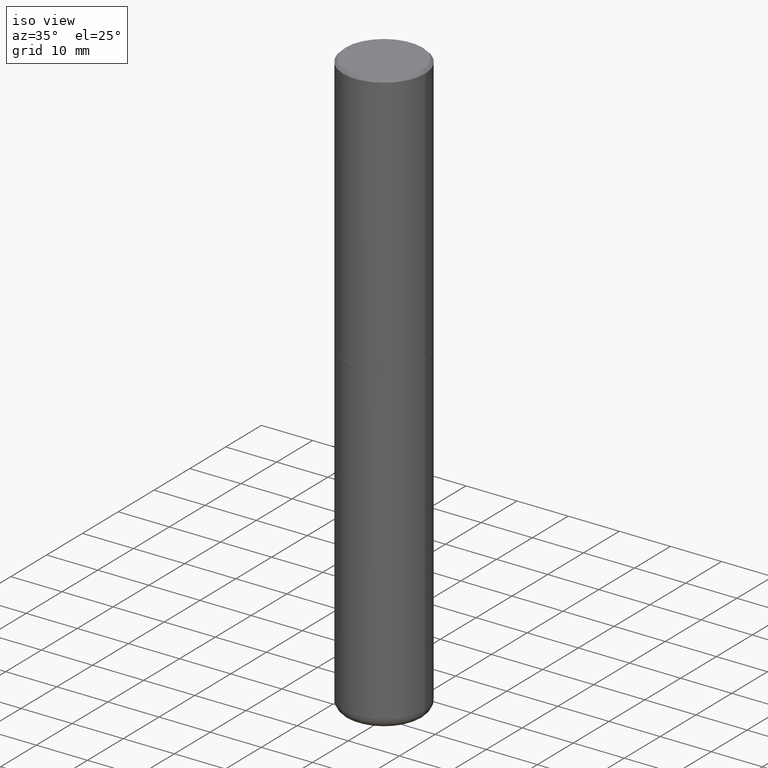
[diagram: clean part render]
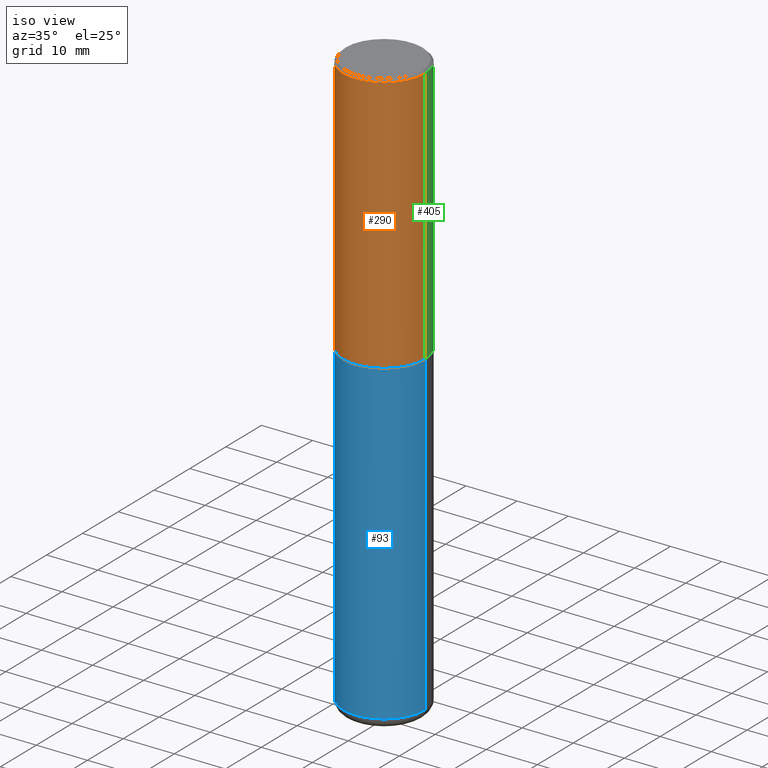
[diagram: same view with three faces highlighted in distinct colors, each labeled with its STEP entity id]
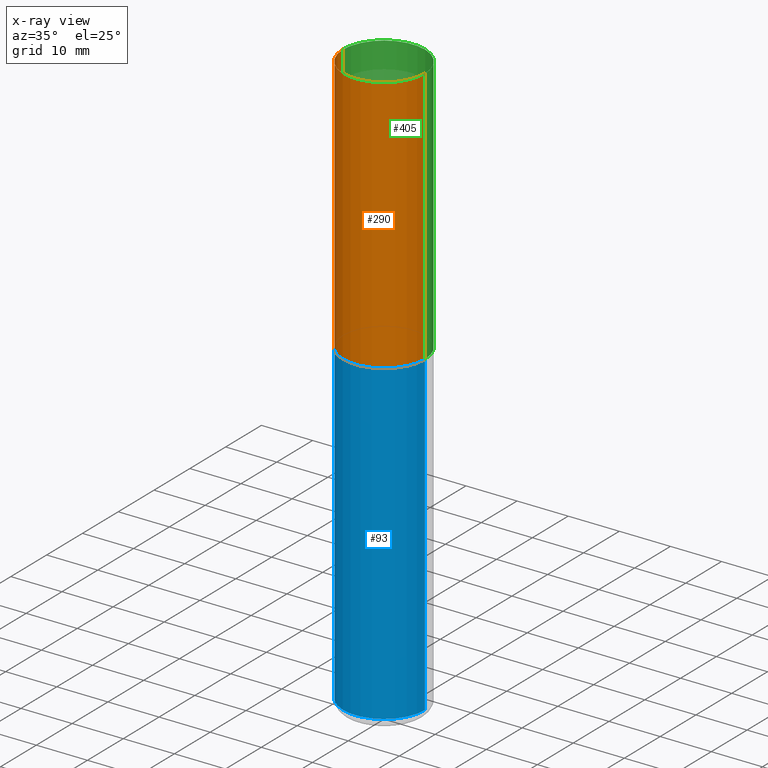
[diagram: x-ray of the same camera — body ghosted, the three highlighted faces saturated]
A machine part, iso view with three faces highlighted in distinct colors.
The next image is the same camera in x-ray (body ghosted, the three faces saturated) — at least one of them is partly hidden behind the body in this view.
Their STEP definitions:

[orange] entity #290 — the highlighted cylindrical surface (partial cylindrical patch) has radius 7.9997 mm, axis along (-0, 0, 1).
#4 = VERTEX_POINT ( 'NONE', #65 ) ;
#10 = EDGE_LOOP ( 'NONE', ( #190, #169, #100, #385 ) ) ;
#13 = AXIS2_PLACEMENT_3D ( 'NONE', #142, #77, #395 ) ;
#14 = CARTESIAN_POINT ( 'NONE',  ( -0.3149499999999998967, 2.129454468560425784E-15, -0.02000000000000006981 ) ) ;
#23 = VERTEX_POINT ( 'NONE', #108 ) ;
#52 = AXIS2_PLACEMENT_3D ( 'NONE', #272, #84, #217 ) ;
#65 = CARTESIAN_POINT ( 'NONE',  ( 0.3149499999999998967, -2.230543471175006266E-15, -0.02000000000000006981 ) ) ;
#77 = DIRECTION ( 'NONE',  ( -2.445468806185136597E-29, 3.491481338843145583E-15, 1.000000000000000000 ) ) ;
#84 = DIRECTION ( 'NONE',  ( -2.445468806185136597E-29, 3.491481338843145583E-15, 1.000000000000000000 ) ) ;
#99 = VERTEX_POINT ( 'NONE', #114 ) ;
#100 = ORIENTED_EDGE ( 'NONE', *, *, #334, .T. ) ;
#108 = CARTESIAN_POINT ( 'NONE',  ( -0.3149500000000002853, -1.300587416574145677E-15, -2.006899999999999906 ) ) ;
#114 = CARTESIAN_POINT ( 'NONE',  ( 0.3149500000000002853, -9.206337994261599363E-15, -2.006899999999999906 ) ) ;
#120 = EDGE_CURVE ( 'NONE', #225, #4, #388, .T. ) ;
#122 = DIRECTION ( 'NONE',  ( -2.445468806185136877E-29, 3.491481338843145188E-15, 1.000000000000000000 ) ) ;
#125 = VECTOR ( 'NONE', #122, 39.37007874015748143 ) ;
#126 = DIRECTION ( 'NONE',  ( -2.445468806185136597E-29, 3.491481338843145583E-15, 1.000000000000000000 ) ) ;
#131 = LINE ( 'NONE', #245, #125 ) ;
#142 = CARTESIAN_POINT ( 'NONE',  ( 4.890937612370289799E-31, -6.982962677686315028E-17, -0.02000000000000006981 ) ) ;
#152 = CARTESIAN_POINT ( 'NONE',  ( 0.3149500000000000632, -2.199284095337290265E-15, 1.535751875536930410E-29 ) ) ;
#169 = ORIENTED_EDGE ( 'NONE', *, *, #367, .T. ) ;
#186 = DIRECTION ( 'NONE',  ( 1.000000000000000000, -6.982962677686267499E-15, 0.000000000000000000 ) ) ;
#190 = ORIENTED_EDGE ( 'NONE', *, *, #358, .F. ) ;
#217 = DIRECTION ( 'NONE',  ( 1.000000000000000000, -6.982962677686266711E-15, 4.876176775795936353E-29 ) ) ;
#225 = VERTEX_POINT ( 'NONE', #14 ) ;
#245 = CARTESIAN_POINT ( 'NONE',  ( -0.3149500000000000632, 2.237854346276435985E-15, -1.549218606675782956E-29 ) ) ;
#272 = CARTESIAN_POINT ( 'NONE',  ( 0.000000000000000000, 0.000000000000000000, 0.000000000000000000 ) ) ;
#290 = ADVANCED_FACE ( 'NONE', ( #335 ), #406, .T. ) ;
#334 = EDGE_CURVE ( 'NONE', #99, #4, #404, .T. ) ;
#335 = FACE_OUTER_BOUND ( 'NONE', #10, .T. ) ;
#348 = VECTOR ( 'NONE', #416, 39.37007874015748143 ) ;
#356 = AXIS2_PLACEMENT_3D ( 'NONE', #377, #126, #186 ) ;
#358 = EDGE_CURVE ( 'NONE', #23, #225, #131, .T. ) ;
#365 = CIRCLE ( 'NONE', #356, 0.3149500000000002853 ) ;
#367 = EDGE_CURVE ( 'NONE', #23, #99, #365, .T. ) ;
#377 = CARTESIAN_POINT ( 'NONE',  ( 4.907811347132950267E-29, -7.007053898924307914E-15, -2.006899999999999906 ) ) ;
#385 = ORIENTED_EDGE ( 'NONE', *, *, #120, .F. ) ;
#388 = CIRCLE ( 'NONE', #13, 0.3149499999999998967 ) ;
#395 = DIRECTION ( 'NONE',  ( 1.000000000000000000, -6.982962677686265922E-15, 0.000000000000000000 ) ) ;
#404 = LINE ( 'NONE', #152, #348 ) ;
#406 = CYLINDRICAL_SURFACE ( 'NONE', #52, 0.3149500000000000632 ) ;
#416 = DIRECTION ( 'NONE',  ( -2.445468806185136877E-29, 3.491481338843145188E-15, 1.000000000000000000 ) ) ;

[blue] entity #93 — the highlighted cylindrical surface (partial cylindrical patch) has radius 7.9997 mm, axis along (-0, 0, 1).
#7 = CARTESIAN_POINT ( 'NONE',  ( -0.3149500000000000077, -9.034044008044774753E-15, -2.007899999999999796 ) ) ;
#16 = DIRECTION ( 'NONE',  ( -2.445468806185136597E-29, 3.491481338843145583E-15, 1.000000000000000000 ) ) ;
#60 = AXIS2_PLACEMENT_3D ( 'NONE', #236, #147, #109 ) ;
#73 = VERTEX_POINT ( 'NONE', #7 ) ;
#81 = FACE_OUTER_BOUND ( 'NONE', #262, .T. ) ;
#85 = LINE ( 'NONE', #249, #242 ) ;
#93 = ADVANCED_FACE ( 'NONE', ( #81 ), #209, .T. ) ;
#98 = VERTEX_POINT ( 'NONE', #293 ) ;
#102 = AXIS2_PLACEMENT_3D ( 'NONE', #332, #16, #145 ) ;
#105 = EDGE_CURVE ( 'NONE', #73, #414, #381, .T. ) ;
#109 = DIRECTION ( 'NONE',  ( 1.000000000000000000, -6.982962677686263555E-15, 0.000000000000000000 ) ) ;
#121 = ORIENTED_EDGE ( 'NONE', *, *, #400, .T. ) ;
#132 = VECTOR ( 'NONE', #297, 39.37007874015748143 ) ;
#138 = EDGE_CURVE ( 'NONE', #98, #73, #205, .T. ) ;
#145 = DIRECTION ( 'NONE',  ( 1.000000000000000000, -6.982962677686269866E-15, 0.000000000000000000 ) ) ;
#147 = DIRECTION ( 'NONE',  ( -2.445468806185136597E-29, 3.491481338843145583E-15, 1.000000000000000000 ) ) ;
#164 = AXIS2_PLACEMENT_3D ( 'NONE', #361, #179, #363 ) ;
#168 = CIRCLE ( 'NONE', #102, 0.3149500000000000077 ) ;
#179 = DIRECTION ( 'NONE',  ( -2.445468806185136597E-29, 3.491481338843145583E-15, 1.000000000000000000 ) ) ;
#182 = DIRECTION ( 'NONE',  ( -2.445468806185136877E-29, 3.491481338843145188E-15, 1.000000000000000000 ) ) ;
#183 = ORIENTED_EDGE ( 'NONE', *, *, #105, .F. ) ;
#184 = CARTESIAN_POINT ( 'NONE',  ( 0.3149500000000000077, -9.209829475600440793E-15, -2.007899999999999796 ) ) ;
#185 = VERTEX_POINT ( 'NONE', #327 ) ;
#205 = LINE ( 'NONE', #299, #132 ) ;
#209 = CYLINDRICAL_SURFACE ( 'NONE', #164, 0.3149500000000000077 ) ;
#236 = CARTESIAN_POINT ( 'NONE',  ( 4.910256815939135870E-29, -7.010545380263151710E-15, -2.007899999999999796 ) ) ;
#242 = VECTOR ( 'NONE', #182, 39.37007874015748143 ) ;
#249 = CARTESIAN_POINT ( 'NONE',  ( 0.3149500000000000077, -2.199284095337289871E-15, 1.535751875536930130E-29 ) ) ;
#250 = EDGE_CURVE ( 'NONE', #98, #185, #168, .T. ) ;
#262 = EDGE_LOOP ( 'NONE', ( #407, #286, #121, #183 ) ) ;
#286 = ORIENTED_EDGE ( 'NONE', *, *, #250, .T. ) ;
#293 = CARTESIAN_POINT ( 'NONE',  ( -0.3149499999999998967, -1.329539698210283615E-14, -4.448900000000000077 ) ) ;
#297 = DIRECTION ( 'NONE',  ( -2.445468806185136877E-29, 3.491481338843145188E-15, 1.000000000000000000 ) ) ;
#299 = CARTESIAN_POINT ( 'NONE',  ( -0.3149500000000000077, 2.237854346276435590E-15, -1.549218606675782676E-29 ) ) ;
#327 = CARTESIAN_POINT ( 'NONE',  ( 0.3149499999999998967, -1.773253542371656200E-14, -4.448900000000000077 ) ) ;
#332 = CARTESIAN_POINT ( 'NONE',  ( 1.087964617183705369E-28, -1.553325132837927055E-14, -4.448900000000000077 ) ) ;
#361 = CARTESIAN_POINT ( 'NONE',  ( 0.000000000000000000, 0.000000000000000000, 0.000000000000000000 ) ) ;
#363 = DIRECTION ( 'NONE',  ( 1.000000000000000000, -6.982962677686266711E-15, 4.876176775795936353E-29 ) ) ;
#381 = CIRCLE ( 'NONE', #60, 0.3149500000000000077 ) ;
#400 = EDGE_CURVE ( 'NONE', #185, #414, #85, .T. ) ;
#407 = ORIENTED_EDGE ( 'NONE', *, *, #138, .F. ) ;
#414 = VERTEX_POINT ( 'NONE', #184 ) ;

[green] entity #405 — the highlighted cylindrical surface (partial cylindrical patch) has radius 7.9997 mm, axis along (-0, 0, 1).
#4 = VERTEX_POINT ( 'NONE', #65 ) ;
#14 = CARTESIAN_POINT ( 'NONE',  ( -0.3149499999999998967, 2.129454468560425784E-15, -0.02000000000000006981 ) ) ;
#21 = FACE_OUTER_BOUND ( 'NONE', #339, .T. ) ;
#22 = CARTESIAN_POINT ( 'NONE',  ( 0.000000000000000000, 0.000000000000000000, 0.000000000000000000 ) ) ;
#23 = VERTEX_POINT ( 'NONE', #108 ) ;
#56 = DIRECTION ( 'NONE',  ( 1.000000000000000000, -6.982962677686266711E-15, 4.876176775795936353E-29 ) ) ;
#59 = EDGE_CURVE ( 'NONE', #4, #225, #347, .T. ) ;
#65 = CARTESIAN_POINT ( 'NONE',  ( 0.3149499999999998967, -2.230543471175006266E-15, -0.02000000000000006981 ) ) ;
#99 = VERTEX_POINT ( 'NONE', #114 ) ;
#104 = AXIS2_PLACEMENT_3D ( 'NONE', #22, #153, #56 ) ;
#108 = CARTESIAN_POINT ( 'NONE',  ( -0.3149500000000002853, -1.300587416574145677E-15, -2.006899999999999906 ) ) ;
#113 = CARTESIAN_POINT ( 'NONE',  ( 4.907811347132950267E-29, -7.007053898924307914E-15, -2.006899999999999906 ) ) ;
#114 = CARTESIAN_POINT ( 'NONE',  ( 0.3149500000000002853, -9.206337994261599363E-15, -2.006899999999999906 ) ) ;
#122 = DIRECTION ( 'NONE',  ( -2.445468806185136877E-29, 3.491481338843145188E-15, 1.000000000000000000 ) ) ;
#125 = VECTOR ( 'NONE', #122, 39.37007874015748143 ) ;
#129 = ORIENTED_EDGE ( 'NONE', *, *, #334, .F. ) ;
#131 = LINE ( 'NONE', #245, #125 ) ;
#152 = CARTESIAN_POINT ( 'NONE',  ( 0.3149500000000000632, -2.199284095337290265E-15, 1.535751875536930410E-29 ) ) ;
#153 = DIRECTION ( 'NONE',  ( -2.445468806185136597E-29, 3.491481338843145583E-15, 1.000000000000000000 ) ) ;
#163 = ORIENTED_EDGE ( 'NONE', *, *, #59, .F. ) ;
#171 = EDGE_CURVE ( 'NONE', #99, #23, #364, .T. ) ;
#174 = AXIS2_PLACEMENT_3D ( 'NONE', #318, #287, #258 ) ;
#199 = ORIENTED_EDGE ( 'NONE', *, *, #171, .T. ) ;
#225 = VERTEX_POINT ( 'NONE', #14 ) ;
#238 = DIRECTION ( 'NONE',  ( 1.000000000000000000, -6.982962677686267499E-15, 0.000000000000000000 ) ) ;
#244 = DIRECTION ( 'NONE',  ( -2.445468806185136597E-29, 3.491481338843145583E-15, 1.000000000000000000 ) ) ;
#245 = CARTESIAN_POINT ( 'NONE',  ( -0.3149500000000000632, 2.237854346276435985E-15, -1.549218606675782956E-29 ) ) ;
#258 = DIRECTION ( 'NONE',  ( 1.000000000000000000, -6.982962677686265922E-15, 0.000000000000000000 ) ) ;
#259 = AXIS2_PLACEMENT_3D ( 'NONE', #113, #244, #238 ) ;
#287 = DIRECTION ( 'NONE',  ( -2.445468806185136597E-29, 3.491481338843145583E-15, 1.000000000000000000 ) ) ;
#311 = ORIENTED_EDGE ( 'NONE', *, *, #358, .T. ) ;
#318 = CARTESIAN_POINT ( 'NONE',  ( 4.890937612370289799E-31, -6.982962677686315028E-17, -0.02000000000000006981 ) ) ;
#334 = EDGE_CURVE ( 'NONE', #99, #4, #404, .T. ) ;
#339 = EDGE_LOOP ( 'NONE', ( #199, #311, #163, #129 ) ) ;
#347 = CIRCLE ( 'NONE', #174, 0.3149499999999998967 ) ;
#348 = VECTOR ( 'NONE', #416, 39.37007874015748143 ) ;
#358 = EDGE_CURVE ( 'NONE', #23, #225, #131, .T. ) ;
#364 = CIRCLE ( 'NONE', #259, 0.3149500000000002853 ) ;
#374 = CYLINDRICAL_SURFACE ( 'NONE', #104, 0.3149500000000000632 ) ;
#404 = LINE ( 'NONE', #152, #348 ) ;
#405 = ADVANCED_FACE ( 'NONE', ( #21 ), #374, .T. ) ;
#416 = DIRECTION ( 'NONE',  ( -2.445468806185136877E-29, 3.491481338843145188E-15, 1.000000000000000000 ) ) ;